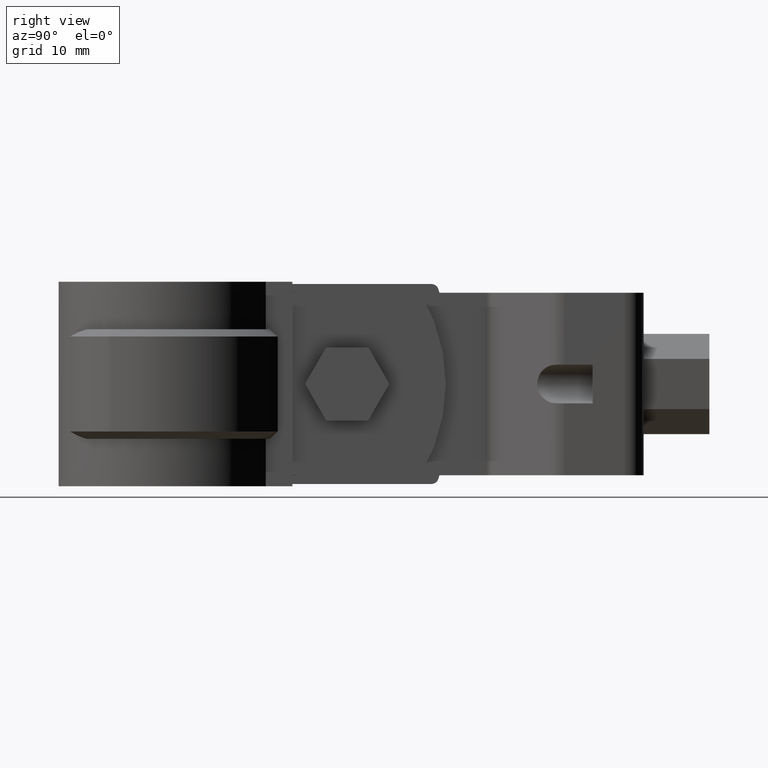
[diagram: clean part render]
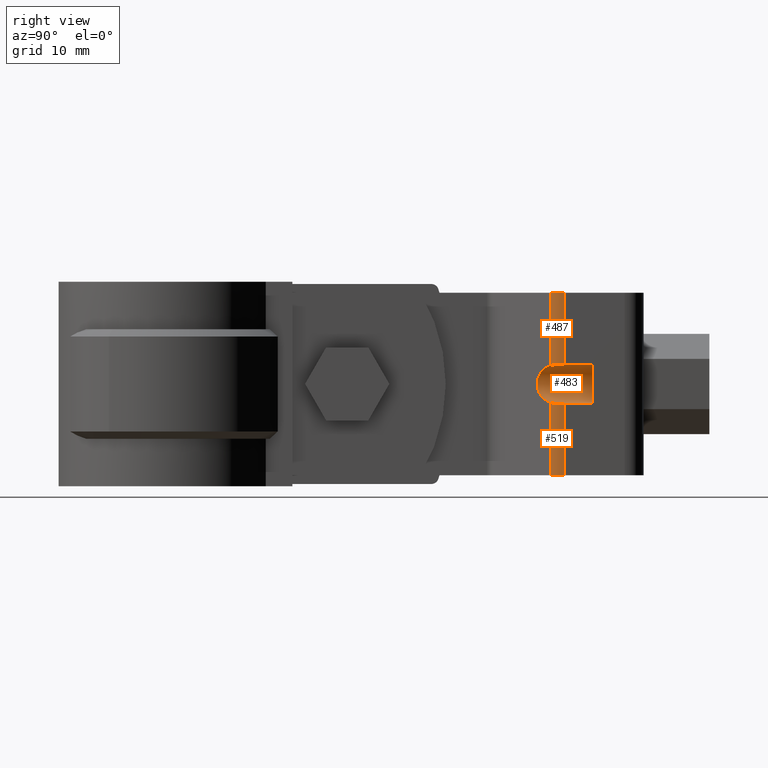
[diagram: same view with one multi-face feature highlighted, each face labeled with its STEP entity id]
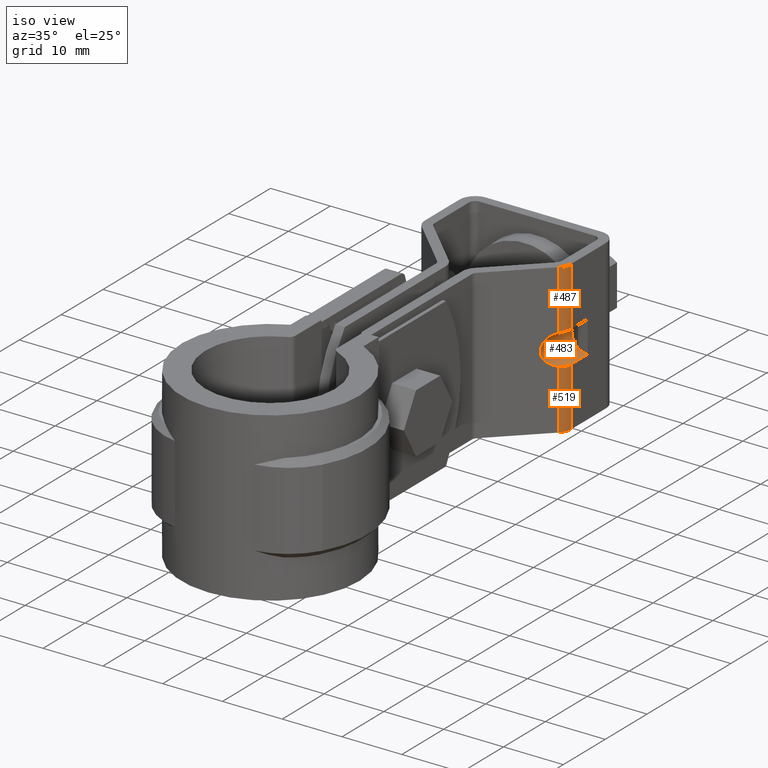
[diagram: same view with one multi-face feature highlighted, each face labeled with its STEP entity id]
A machine part, right view. The highlighted faces form ONE feature: a constant-radius fillet chain: 3 tangent blend faces with common blend radius 2.61667 mm. The faces share edges in the B-rep.
A second angle (iso view) of the same feature is appended — it is thin or edge-on in the first view.
Their STEP definitions:
[1] entity #487 (Cylinder):
#487 = ADVANCED_FACE( '', ( #946 ), #947, .T. );
#946 = FACE_OUTER_BOUND( '', #2027, .T. );
#947 = CYLINDRICAL_SURFACE( '', #2028, 2.59999999999999 );
#2027 = EDGE_LOOP( '', ( #4626, #4627, #4628, #4629 ) );
#2028 = AXIS2_PLACEMENT_3D( '', #4630, #4631, #4632 );
#4626 = ORIENTED_EDGE( '', *, *, #6679, .F. );
#4627 = ORIENTED_EDGE( '', *, *, #6641, .F. );
#4628 = ORIENTED_EDGE( '', *, *, #6680, .T. );
#4629 = ORIENTED_EDGE( '', *, *, #6668, .T. );
#4630 = CARTESIAN_POINT( '', ( 9.65000000017266, 54.3940212277382, 1.21203463931963E-008 ) );
#4631 = DIRECTION( '', ( -7.65540480244708E-013, -9.34504695848679E-011, 1.00000000000000 ) );
#4632 = DIRECTION( '', ( 8.53711502114338E-013, 1.00000000000000, 9.34504695848685E-011 ) );
#6641 = EDGE_CURVE( '', #7794, #7796, #7797, .T. );
#6668 = EDGE_CURVE( '', #7833, #7845, #7847, .T. );
#6679 = EDGE_CURVE( '', #7796, #7845, #7864, .T. );
#6680 = EDGE_CURVE( '', #7794, #7833, #7865, .T. );
#7794 = VERTEX_POINT( '', #10823 );
#7796 = VERTEX_POINT( '', #10826 );
#7797 = CIRCLE( '', #10827, 2.59999999999999 );
#7833 = VERTEX_POINT( '', #10874 );
#7845 = VERTEX_POINT( '', #10896 );
#7847 = B_SPLINE_CURVE_WITH_KNOTS( '', 3, ( #10899, #10900, #10901, #10902, #10903, #10904, #10905, #10906 ), .UNSPECIFIED., .F., .F., ( 4, 2, 2, 4 ), ( 1.73472347597683E-018, 0.000516787748161300, 0.00103357549632260, 0.00206715099264519 ), .UNSPECIFIED. );
#7864 = LINE( '', #10939, #10940 );
#7865 = LINE( '', #10941, #10942 );
#10823 = CARTESIAN_POINT( '', ( 11.4656419725504, 52.5329881199885, 1.19478177351695E-008 ) );
#10826 = CARTESIAN_POINT( '', ( 12.2500000001726, 54.3940212277360, 1.21223309168528E-008 ) );
#10827 = AXIS2_PLACEMENT_3D( '', #12692, #12693, #12694 );
#10874 = CARTESIAN_POINT( '', ( 11.4656419725580, 52.5329881209201, -9.96873894175394 ) );
#10896 = CARTESIAN_POINT( '', ( 12.2500000001802, 54.3940212286564, -9.84999998787769 ) );
#10899 = CARTESIAN_POINT( '', ( 11.4656419725580, 52.5329881209201, -9.96873894175393 ) );
#10900 = CARTESIAN_POINT( '', ( 11.5880007596098, 52.6523625417881, -9.93082380967273 ) );
#10901 = CARTESIAN_POINT( '', ( 11.6979909727604, 52.7830615071550, -9.90626131821873 ) );
#10902 = CARTESIAN_POINT( '', ( 11.8919853002226, 53.0662561280170, -9.87244984990117 ) );
#10903 = CARTESIAN_POINT( '', ( 11.9765770459251, 53.2205813265491, -9.86327472010458 ) );
#10904 = CARTESIAN_POINT( '', ( 12.1789956026914, 53.6984142583875, -9.84749562859480 ) );
#10905 = CARTESIAN_POINT( '', ( 12.2500000001799, 54.0444793866092, -9.84999998791036 ) );
#10906 = CARTESIAN_POINT( '', ( 12.2500000001802, 54.3940212286564, -9.84999998787769 ) );
#10939 = CARTESIAN_POINT( '', ( 12.2500000001726, 54.3940212277360, 1.21223309168528E-008 ) );
#10940 = VECTOR( '', #12756, 1000.00000000000 );
#10941 = CARTESIAN_POINT( '', ( 11.4656419725504, 52.5329881199885, 1.19478177351695E-008 ) );
#10942 = VECTOR( '', #12757, 1000.00000000000 );
#12692 = CARTESIAN_POINT( '', ( 9.65000000017266, 54.3940212277382, 1.21203463931963E-008 ) );
#12693 = DIRECTION( '', ( -7.65540480244704E-013, -9.34504695848679E-011, 1.00000000000000 ) );
#12694 = DIRECTION( '', ( 0.698323835529889, -0.715781964519102, -6.63555655402714E-011 ) );
#12756 = DIRECTION( '', ( 7.65540480244708E-013, 9.34504695848679E-011, -1.00000000000000 ) );
#12757 = DIRECTION( '', ( 7.65540480244708E-013, 9.34504695848679E-011, -1.00000000000000 ) );
[2] entity #483 (Cylinder):
#483 = ADVANCED_FACE( '', ( #938 ), #939, .F. );
#938 = FACE_OUTER_BOUND( '', #2019, .T. );
#939 = CYLINDRICAL_SURFACE( '', #2020, 2.64999999999997 );
#2019 = EDGE_LOOP( '', ( #4592, #4593, #4594, #4595, #4596, #4597, #4598, #4599 ) );
#2020 = AXIS2_PLACEMENT_3D( '', #4600, #4601, #4602 );
#4592 = ORIENTED_EDGE( '', *, *, #6661, .F. );
#4593 = ORIENTED_EDGE( '', *, *, #6662, .F. );
#4594 = ORIENTED_EDGE( '', *, *, #6663, .T. );
#4595 = ORIENTED_EDGE( '', *, *, #6664, .T. );
#4596 = ORIENTED_EDGE( '', *, *, #6665, .T. );
#4597 = ORIENTED_EDGE( '', *, *, #6666, .T. );
#4598 = ORIENTED_EDGE( '', *, *, #6667, .F. );
#4599 = ORIENTED_EDGE( '', *, *, #6668, .F. );
#4600 = CARTESIAN_POINT( '', ( 12.2500000001770, 48.2982154297897, -12.4999999884473 ) );
#4601 = DIRECTION( '', ( -8.53711502114339E-013, -1.00000000000000, -9.34504695848686E-011 ) );
#4602 = DIRECTION( '', ( -7.86596364060734E-013, -9.34504695848679E-011, 1.00000000000000 ) );
#6661 = EDGE_CURVE( '', #7832, #7833, #7834, .T. );
#6662 = EDGE_CURVE( '', #7835, #7832, #7836, .T. );
#6663 = EDGE_CURVE( '', #7835, #7837, #7838, .T. );
#6664 = EDGE_CURVE( '', #7837, #7839, #7840, .T. );
#6665 = EDGE_CURVE( '', #7839, #7841, #7842, .T. );
#6666 = EDGE_CURVE( '', #7841, #7843, #7844, .T. );
#6667 = EDGE_CURVE( '', #7845, #7843, #7846, .T. );
#6668 = EDGE_CURVE( '', #7833, #7845, #7847, .T. );
#7832 = VERTEX_POINT( '', #10873 );
#7833 = VERTEX_POINT( '', #10874 );
#7834 = ELLIPSE( '', #10875, 3.70224472166266, 2.64999999999997 );
#7835 = VERTEX_POINT( '', #10876 );
#7836 = B_SPLINE_CURVE_WITH_KNOTS( '', 3, ( #10877, #10878, #10879, #10880, #10881, #10882, #10883, #10884, #10885, #10886 ), .UNSPECIFIED., .F., .F., ( 4, 2, 2, 2, 4 ), ( 0.000000000000000, 0.000517346174284563, 0.00103469234856913, 0.00155203852285369, 0.00206938469713825 ), .UNSPECIFIED. );
#7837 = VERTEX_POINT( '', #10887 );
#7838 = LINE( '', #10888, #10889 );
#7839 = VERTEX_POINT( '', #10890 );
#7840 = CIRCLE( '', #10891, 2.64999999999997 );
#7841 = VERTEX_POINT( '', #10892 );
#7842 = CIRCLE( '', #10893, 2.64999999999997 );
#7843 = VERTEX_POINT( '', #10894 );
#7844 = CIRCLE( '', #10895, 2.64999999999997 );
#7845 = VERTEX_POINT( '', #10896 );
#7846 = LINE( '', #10897, #10898 );
#7847 = B_SPLINE_CURVE_WITH_KNOTS( '', 3, ( #10899, #10900, #10901, #10902, #10903, #10904, #10905, #10906 ), .UNSPECIFIED., .F., .F., ( 4, 2, 2, 4 ), ( 1.73472347597683E-018, 0.000516787748161300, 0.00103357549632260, 0.00206715099264519 ), .UNSPECIFIED. );
#10873 = CARTESIAN_POINT( '', ( 11.4656419725619, 52.5329881213931, -15.0312610343504 ) );
#10874 = CARTESIAN_POINT( '', ( 11.4656419725580, 52.5329881209201, -9.96873894175394 ) );
#10875 = AXIS2_PLACEMENT_3D( '', #12730, #12731, #12732 );
#10876 = CARTESIAN_POINT( '', ( 12.2500000001842, 54.3940212291517, -15.1499999878776 ) );
#10877 = CARTESIAN_POINT( '', ( 12.2500000001842, 54.3940212291517, -15.1499999878776 ) );
#10878 = CARTESIAN_POINT( '', ( 12.2500000001841, 54.2191311649034, -15.1499999878940 ) );
#10879 = CARTESIAN_POINT( '', ( 12.2325330355922, 54.0471887569979, -15.1501636839148 ) );
#10880 = CARTESIAN_POINT( '', ( 12.1640563526312, 53.7089735669897, -15.1488273511194 ) );
#10881 = CARTESIAN_POINT( '', ( 12.1121297118865, 53.5408427187076, -15.1472759408222 ) );
#10882 = CARTESIAN_POINT( '', ( 11.9772119362681, 53.2218092634729, -15.1367906241958 ) );
#10883 = CARTESIAN_POINT( '', ( 11.8947254706441, 53.0707980441208, -15.1279277714843 ) );
#10884 = CARTESIAN_POINT( '', ( 11.7003962038319, 52.7860450342994, -15.0942551978287 ) );
#10885 = CARTESIAN_POINT( '', ( 11.5880224300408, 52.6523836841474, -15.0691828813915 ) );
#10886 = CARTESIAN_POINT( '', ( 11.4656419725619, 52.5329881213931, -15.0312610343504 ) );
#10887 = CARTESIAN_POINT( '', ( 12.2500000001876, 58.2982154300374, -15.1499999875128 ) );
#10888 = CARTESIAN_POINT( '', ( 12.2500000001790, 48.2982154300373, -15.1499999884473 ) );
#10889 = VECTOR( '', #12733, 1000.00000000000 );
#10890 = CARTESIAN_POINT( '', ( 10.6500000001872, 58.2982154299885, -14.6124630049418 ) );
#10891 = AXIS2_PLACEMENT_3D( '', #12734, #12735, #12736 );
#10892 = CARTESIAN_POINT( '', ( 10.6500000001839, 58.2982154295937, -10.3875369700863 ) );
#10893 = AXIS2_PLACEMENT_3D( '', #12737, #12738, #12739 );
#10894 = CARTESIAN_POINT( '', ( 12.2500000001835, 58.2982154295421, -9.84999998751285 ) );
#10895 = AXIS2_PLACEMENT_3D( '', #12740, #12741, #12742 );
#10896 = CARTESIAN_POINT( '', ( 12.2500000001802, 54.3940212286564, -9.84999998787769 ) );
#10897 = CARTESIAN_POINT( '', ( 12.2500000001750, 48.2982154295420, -9.84999998844735 ) );
#10898 = VECTOR( '', #12743, 1000.00000000000 );
#10899 = CARTESIAN_POINT( '', ( 11.4656419725580, 52.5329881209201, -9.96873894175393 ) );
#10900 = CARTESIAN_POINT( '', ( 11.5880007596098, 52.6523625417881, -9.93082380967273 ) );
#10901 = CARTESIAN_POINT( '', ( 11.6979909727604, 52.7830615071550, -9.90626131821873 ) );
#10902 = CARTESIAN_POINT( '', ( 11.8919853002226, 53.0662561280170, -9.87244984990117 ) );
#10903 = CARTESIAN_POINT( '', ( 11.9765770459251, 53.2205813265491, -9.86327472010458 ) );
#10904 = CARTESIAN_POINT( '', ( 12.1789956026914, 53.6984142583875, -9.84749562859480 ) );
#10905 = CARTESIAN_POINT( '', ( 12.2500000001799, 54.0444793866092, -9.84999998791036 ) );
#10906 = CARTESIAN_POINT( '', ( 12.2500000001802, 54.3940212286564, -9.84999998787769 ) );
#12730 = CARTESIAN_POINT( '', ( 12.2500000001812, 53.2982154297898, -12.4999999879801 ) );
#12731 = DIRECTION( '', ( -0.698323835529886, 0.715781964519104, 6.63555304378239E-011 ) );
#12732 = DIRECTION( '', ( 0.715781964519104, 0.698323835529886, 6.58066864014530E-011 ) );
#12733 = DIRECTION( '', ( 8.53711502114338E-013, 1.00000000000000, 9.34504695848685E-011 ) );
#12734 = CARTESIAN_POINT( '', ( 12.2500000001855, 58.2982154297897, -12.4999999875128 ) );
#12735 = DIRECTION( '', ( 8.53711502114338E-013, 1.00000000000000, 9.34504695848685E-011 ) );
#12736 = DIRECTION( '', ( -7.64994147190080E-013, -9.34504695848679E-011, 1.00000000000000 ) );
#12737 = CARTESIAN_POINT( '', ( 12.2500000001855, 58.2982154297897, -12.4999999875128 ) );
#12738 = DIRECTION( '', ( 8.53711502114338E-013, 1.00000000000000, 9.34504695848685E-011 ) );
#12739 = DIRECTION( '', ( -7.64994147190080E-013, -9.34504695848679E-011, 1.00000000000000 ) );
#12740 = CARTESIAN_POINT( '', ( 12.2500000001855, 58.2982154297897, -12.4999999875128 ) );
#12741 = DIRECTION( '', ( 8.53711502114338E-013, 1.00000000000000, 9.34504695848685E-011 ) );
#12742 = DIRECTION( '', ( -7.64994147190080E-013, -9.34504695848679E-011, 1.00000000000000 ) );
#12743 = DIRECTION( '', ( 8.53711502114338E-013, 1.00000000000000, 9.34504695848685E-011 ) );
[3] entity #519 (Cylinder):
#519 = ADVANCED_FACE( '', ( #1016 ), #1017, .T. );
#1016 = FACE_OUTER_BOUND( '', #2097, .T. );
#1017 = CYLINDRICAL_SURFACE( '', #2098, 2.59999999999999 );
#2097 = EDGE_LOOP( '', ( #4908, #4909, #4910, #4911 ) );
#2098 = AXIS2_PLACEMENT_3D( '', #4912, #4913, #4914 );
#4908 = ORIENTED_EDGE( '', *, *, #6754, .T. );
#4909 = ORIENTED_EDGE( '', *, *, #6747, .T. );
#4910 = ORIENTED_EDGE( '', *, *, #6681, .F. );
#4911 = ORIENTED_EDGE( '', *, *, #6662, .T. );
#4912 = CARTESIAN_POINT( '', ( 9.65000000017266, 54.3940212277382, 1.21203463931963E-008 ) );
#4913 = DIRECTION( '', ( -7.65540480244708E-013, -9.34504695848679E-011, 1.00000000000000 ) );
#4914 = DIRECTION( '', ( 8.53711502114338E-013, 1.00000000000000, 9.34504695848685E-011 ) );
#6662 = EDGE_CURVE( '', #7835, #7832, #7836, .T. );
#6681 = EDGE_CURVE( '', #7835, #7866, #7867, .T. );
#6747 = EDGE_CURVE( '', #7970, #7866, #7971, .T. );
#6754 = EDGE_CURVE( '', #7832, #7970, #7980, .T. );
#7832 = VERTEX_POINT( '', #10873 );
#7835 = VERTEX_POINT( '', #10876 );
#7836 = B_SPLINE_CURVE_WITH_KNOTS( '', 3, ( #10877, #10878, #10879, #10880, #10881, #10882, #10883, #10884, #10885, #10886 ), .UNSPECIFIED., .F., .F., ( 4, 2, 2, 2, 4 ), ( 0.000000000000000, 0.000517346174284563, 0.00103469234856913, 0.00155203852285369, 0.00206938469713825 ), .UNSPECIFIED. );
#7866 = VERTEX_POINT( '', #10943 );
#7867 = LINE( '', #10944, #10945 );
#7970 = VERTEX_POINT( '', #11115 );
#7971 = CIRCLE( '', #11116, 2.59999999999999 );
#7980 = LINE( '', #11129, #11130 );
#10873 = CARTESIAN_POINT( '', ( 11.4656419725619, 52.5329881213931, -15.0312610343504 ) );
#10876 = CARTESIAN_POINT( '', ( 12.2500000001842, 54.3940212291517, -15.1499999878776 ) );
#10877 = CARTESIAN_POINT( '', ( 12.2500000001842, 54.3940212291517, -15.1499999878776 ) );
#10878 = CARTESIAN_POINT( '', ( 12.2500000001841, 54.2191311649034, -15.1499999878940 ) );
#10879 = CARTESIAN_POINT( '', ( 12.2325330355922, 54.0471887569979, -15.1501636839148 ) );
#10880 = CARTESIAN_POINT( '', ( 12.1640563526312, 53.7089735669897, -15.1488273511194 ) );
#10881 = CARTESIAN_POINT( '', ( 12.1121297118865, 53.5408427187076, -15.1472759408222 ) );
#10882 = CARTESIAN_POINT( '', ( 11.9772119362681, 53.2218092634729, -15.1367906241958 ) );
#10883 = CARTESIAN_POINT( '', ( 11.8947254706441, 53.0707980441208, -15.1279277714843 ) );
#10884 = CARTESIAN_POINT( '', ( 11.7003962038319, 52.7860450342994, -15.0942551978287 ) );
#10885 = CARTESIAN_POINT( '', ( 11.5880224300408, 52.6523836841474, -15.0691828813915 ) );
#10886 = CARTESIAN_POINT( '', ( 11.4656419725619, 52.5329881213931, -15.0312610343504 ) );
#10943 = CARTESIAN_POINT( '', ( 12.2500000001918, 54.3940212300722, -24.9999999878777 ) );
#10944 = CARTESIAN_POINT( '', ( 12.2500000001726, 54.3940212277360, 1.21223309168528E-008 ) );
#10945 = VECTOR( '', #12758, 1000.00000000000 );
#11115 = CARTESIAN_POINT( '', ( 11.4656419725695, 52.5329881223248, -24.9999999880522 ) );
#11116 = AXIS2_PLACEMENT_3D( '', #12860, #12861, #12862 );
#11129 = CARTESIAN_POINT( '', ( 11.4656419725504, 52.5329881199885, 1.19478177351695E-008 ) );
#11130 = VECTOR( '', #12873, 1000.00000000000 );
#12758 = DIRECTION( '', ( 7.65540480244708E-013, 9.34504695848679E-011, -1.00000000000000 ) );
#12860 = CARTESIAN_POINT( '', ( 9.65000000019180, 54.3940212300744, -24.9999999878796 ) );
#12861 = DIRECTION( '', ( -7.65540480244704E-013, -9.34504695848679E-011, 1.00000000000000 ) );
#12862 = DIRECTION( '', ( 0.698323835529889, -0.715781964519102, -6.63555655402714E-011 ) );
#12873 = DIRECTION( '', ( 7.65540480244708E-013, 9.34504695848679E-011, -1.00000000000000 ) );